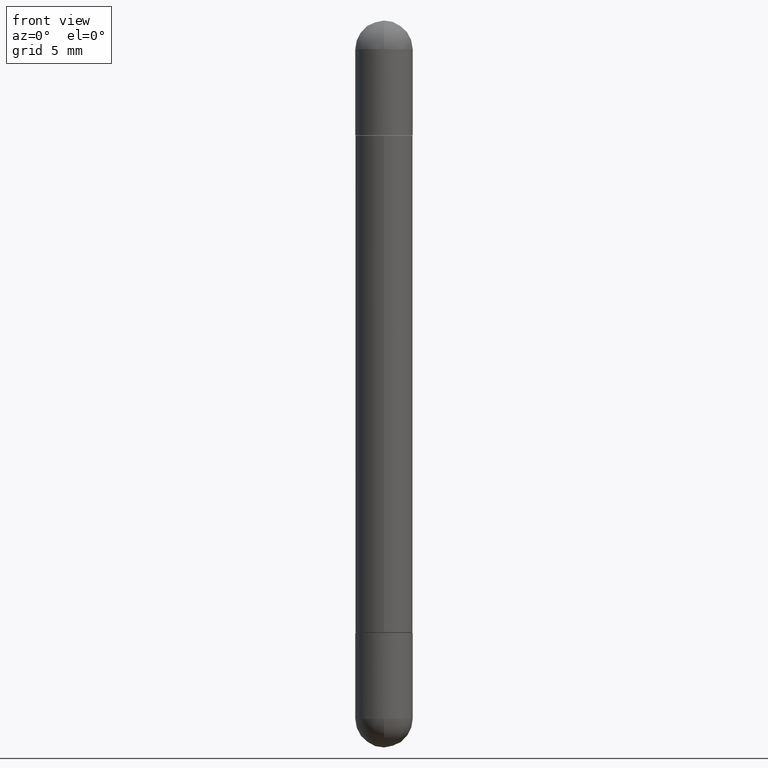
[diagram: clean part render]
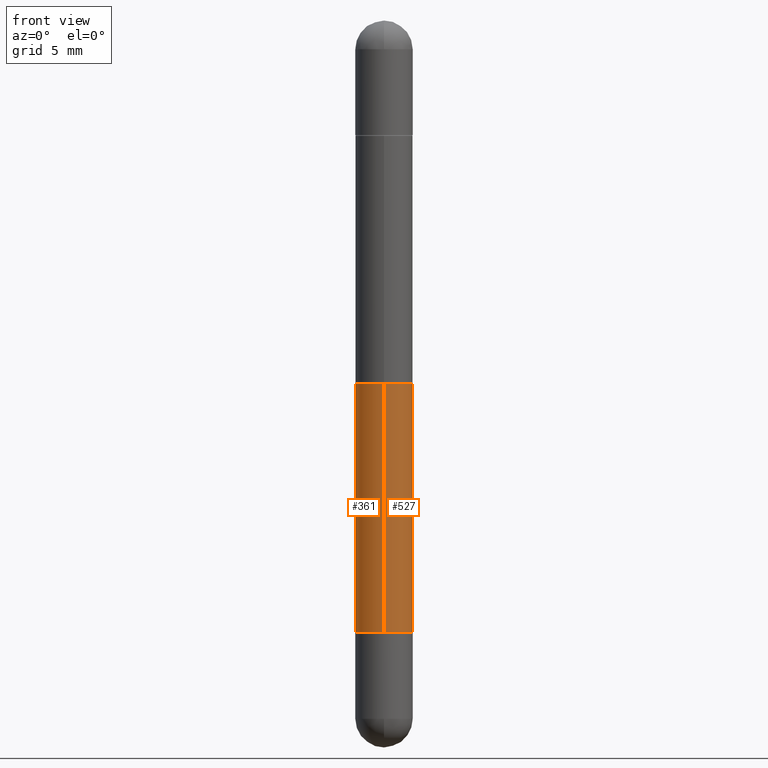
[diagram: same view with one multi-face feature highlighted, each face labeled with its STEP entity id]
A machine part, front view. The highlighted faces form ONE feature: a constant-radius fillet chain: 2 tangent blend faces with common blend radius 1.4999 mm. The faces share edges in the B-rep.
Their STEP definitions:
[1] entity #527 (Cylinder):
#25 = DIRECTION ( 'NONE',  ( -2.453200728545479621E-29, 3.480408785949443313E-15, 1.000000000000000000 ) ) ;
#71 = DIRECTION ( 'NONE',  ( -2.453200728545479340E-29, 3.480408785949443313E-15, -1.000000000000000000 ) ) ;
#82 = LINE ( 'NONE', #464, #130 ) ;
#97 = CARTESIAN_POINT ( 'NONE',  ( 4.051124067684094106E-16, 0.05905000000000007465, -1.496099999999999985 ) ) ;
#103 = FACE_OUTER_BOUND ( 'NONE', #554, .T. ) ;
#107 = AXIS2_PLACEMENT_3D ( 'NONE', #585, #25, #528 ) ;
#130 = VECTOR ( 'NONE', #71, 39.37007874015748143 ) ;
#185 = VERTEX_POINT ( 'NONE', #618 ) ;
#199 = CARTESIAN_POINT ( 'NONE',  ( 0.000000000000000000, 0.000000000000000000, -1.496100000000000207 ) ) ;
#201 = CARTESIAN_POINT ( 'NONE',  ( 3.088334397165904554E-29, -4.381486620631754468E-15, -0.2372000000000001330 ) ) ;
#260 = ORIENTED_EDGE ( 'NONE', *, *, #412, .F. ) ;
#270 = CARTESIAN_POINT ( 'NONE',  ( -4.123439461173440560E-16, -0.05905000000000451554, -1.258899999999999686 ) ) ;
#287 = CYLINDRICAL_SURFACE ( 'NONE', #767, 0.05905000000000007465 ) ;
#295 = EDGE_CURVE ( 'NONE', #313, #613, #547, .T. ) ;
#302 = EDGE_CURVE ( 'NONE', #313, #584, #82, .T. ) ;
#313 = VERTEX_POINT ( 'NONE', #398 ) ;
#315 = DIRECTION ( 'NONE',  ( -6.982962677686265922E-15, -1.000000000000000000, -4.626330217890363814E-15 ) ) ;
#327 = VECTOR ( 'NONE', #665, 39.37007874015748143 ) ;
#337 = DIRECTION ( 'NONE',  ( -6.982962677686265922E-15, -1.000000000000000000, -3.469747663417769114E-15 ) ) ;
#376 = AXIS2_PLACEMENT_3D ( 'NONE', #201, #641, #337 ) ;
#382 = ORIENTED_EDGE ( 'NONE', *, *, #788, .T. ) ;
#398 = CARTESIAN_POINT ( 'NONE',  ( -4.123439461173440067E-16, -0.05905000000000451554, -0.2372000000000003272 ) ) ;
#412 = EDGE_CURVE ( 'NONE', #613, #185, #661, .T. ) ;
#425 = ORIENTED_EDGE ( 'NONE', *, *, #302, .T. ) ;
#462 = CIRCLE ( 'NONE', #107, 0.05905000000000013710 ) ;
#464 = CARTESIAN_POINT ( 'NONE',  ( -4.123439461173745257E-16, -0.05905000000000007465, -1.496100000000000430 ) ) ;
#527 = ADVANCED_FACE ( 'NONE', ( #103 ), #287, .T. ) ;
#528 = DIRECTION ( 'NONE',  ( -6.982962677686265922E-15, -1.000000000000000000, 4.626330217890359081E-15 ) ) ;
#547 = CIRCLE ( 'NONE', #376, 0.05905000000000013710 ) ;
#554 = EDGE_LOOP ( 'NONE', ( #260, #608, #425, #382 ) ) ;
#584 = VERTEX_POINT ( 'NONE', #270 ) ;
#585 = CARTESIAN_POINT ( 'NONE',  ( 3.088334397165904554E-29, -4.381486620631754468E-15, -1.258900000000000130 ) ) ;
#608 = ORIENTED_EDGE ( 'NONE', *, *, #295, .F. ) ;
#613 = VERTEX_POINT ( 'NONE', #706 ) ;
#618 = CARTESIAN_POINT ( 'NONE',  ( 4.051124067684279488E-16, 0.05904999999999575866, -1.258900000000000352 ) ) ;
#641 = DIRECTION ( 'NONE',  ( 2.453200728545479621E-29, -3.480408785949443313E-15, 1.000000000000000000 ) ) ;
#661 = LINE ( 'NONE', #97, #327 ) ;
#665 = DIRECTION ( 'NONE',  ( -2.453200728545479340E-29, 3.480408785949443313E-15, -1.000000000000000000 ) ) ;
#694 = DIRECTION ( 'NONE',  ( -2.453200728545479621E-29, 3.480408785949443313E-15, -1.000000000000000000 ) ) ;
#706 = CARTESIAN_POINT ( 'NONE',  ( 4.051124067684407678E-16, 0.05904999999999575866, -0.2371999999999999387 ) ) ;
#767 = AXIS2_PLACEMENT_3D ( 'NONE', #199, #694, #315 ) ;
#788 = EDGE_CURVE ( 'NONE', #584, #185, #462, .T. ) ;
[2] entity #361 (Cylinder):
#71 = DIRECTION ( 'NONE',  ( -2.453200728545479340E-29, 3.480408785949443313E-15, -1.000000000000000000 ) ) ;
#82 = LINE ( 'NONE', #464, #130 ) ;
#97 = CARTESIAN_POINT ( 'NONE',  ( 4.051124067684094106E-16, 0.05905000000000007465, -1.496099999999999985 ) ) ;
#130 = VECTOR ( 'NONE', #71, 39.37007874015748143 ) ;
#133 = AXIS2_PLACEMENT_3D ( 'NONE', #283, #210, #144 ) ;
#138 = DIRECTION ( 'NONE',  ( -6.982962677686265922E-15, -1.000000000000000000, -3.469747663417769114E-15 ) ) ;
#144 = DIRECTION ( 'NONE',  ( -6.982962677686265922E-15, -1.000000000000000000, 4.626330217890359081E-15 ) ) ;
#174 = ORIENTED_EDGE ( 'NONE', *, *, #412, .T. ) ;
#185 = VERTEX_POINT ( 'NONE', #618 ) ;
#205 = ORIENTED_EDGE ( 'NONE', *, *, #302, .F. ) ;
#210 = DIRECTION ( 'NONE',  ( -2.453200728545479621E-29, 3.480408785949443313E-15, 1.000000000000000000 ) ) ;
#242 = ORIENTED_EDGE ( 'NONE', *, *, #739, .T. ) ;
#270 = CARTESIAN_POINT ( 'NONE',  ( -4.123439461173440560E-16, -0.05905000000000451554, -1.258899999999999686 ) ) ;
#276 = CARTESIAN_POINT ( 'NONE',  ( 3.088334397165904554E-29, -4.381486620631754468E-15, -0.2372000000000001330 ) ) ;
#280 = AXIS2_PLACEMENT_3D ( 'NONE', #276, #651, #138 ) ;
#283 = CARTESIAN_POINT ( 'NONE',  ( 3.088334397165904554E-29, -4.381486620631754468E-15, -1.258900000000000130 ) ) ;
#302 = EDGE_CURVE ( 'NONE', #313, #584, #82, .T. ) ;
#313 = VERTEX_POINT ( 'NONE', #398 ) ;
#324 = DIRECTION ( 'NONE',  ( -2.453200728545479621E-29, 3.480408785949443313E-15, -1.000000000000000000 ) ) ;
#327 = VECTOR ( 'NONE', #665, 39.37007874015748143 ) ;
#330 = EDGE_CURVE ( 'NONE', #613, #313, #628, .T. ) ;
#361 = ADVANCED_FACE ( 'NONE', ( #468 ), #727, .T. ) ;
#398 = CARTESIAN_POINT ( 'NONE',  ( -4.123439461173440067E-16, -0.05905000000000451554, -0.2372000000000003272 ) ) ;
#406 = CIRCLE ( 'NONE', #133, 0.05905000000000013710 ) ;
#412 = EDGE_CURVE ( 'NONE', #613, #185, #661, .T. ) ;
#414 = ORIENTED_EDGE ( 'NONE', *, *, #330, .F. ) ;
#447 = AXIS2_PLACEMENT_3D ( 'NONE', #511, #324, #574 ) ;
#464 = CARTESIAN_POINT ( 'NONE',  ( -4.123439461173745257E-16, -0.05905000000000007465, -1.496100000000000430 ) ) ;
#468 = FACE_OUTER_BOUND ( 'NONE', #530, .T. ) ;
#511 = CARTESIAN_POINT ( 'NONE',  ( 0.000000000000000000, 0.000000000000000000, -1.496100000000000207 ) ) ;
#530 = EDGE_LOOP ( 'NONE', ( #414, #174, #242, #205 ) ) ;
#574 = DIRECTION ( 'NONE',  ( -6.982962677686265922E-15, -1.000000000000000000, -4.626330217890363814E-15 ) ) ;
#584 = VERTEX_POINT ( 'NONE', #270 ) ;
#613 = VERTEX_POINT ( 'NONE', #706 ) ;
#618 = CARTESIAN_POINT ( 'NONE',  ( 4.051124067684279488E-16, 0.05904999999999575866, -1.258900000000000352 ) ) ;
#628 = CIRCLE ( 'NONE', #280, 0.05905000000000013710 ) ;
#651 = DIRECTION ( 'NONE',  ( 2.453200728545479621E-29, -3.480408785949443313E-15, 1.000000000000000000 ) ) ;
#661 = LINE ( 'NONE', #97, #327 ) ;
#665 = DIRECTION ( 'NONE',  ( -2.453200728545479340E-29, 3.480408785949443313E-15, -1.000000000000000000 ) ) ;
#706 = CARTESIAN_POINT ( 'NONE',  ( 4.051124067684407678E-16, 0.05904999999999575866, -0.2371999999999999387 ) ) ;
#727 = CYLINDRICAL_SURFACE ( 'NONE', #447, 0.05905000000000007465 ) ;
#739 = EDGE_CURVE ( 'NONE', #185, #584, #406, .T. ) ;